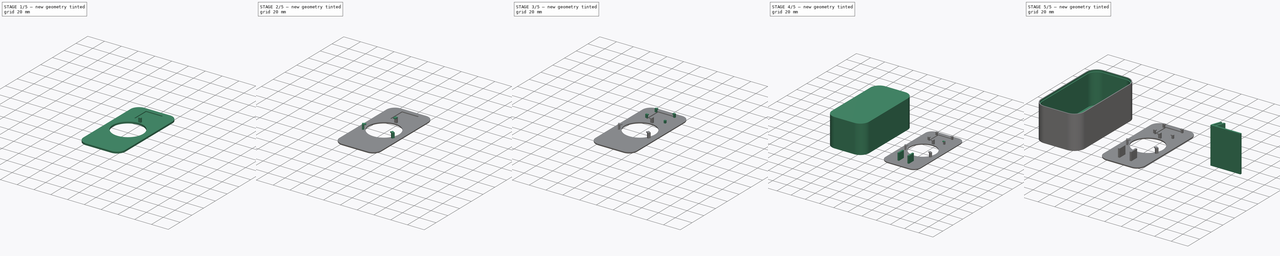
[diagram: build sequence overview — one tinted view per stage of 5, left to right]
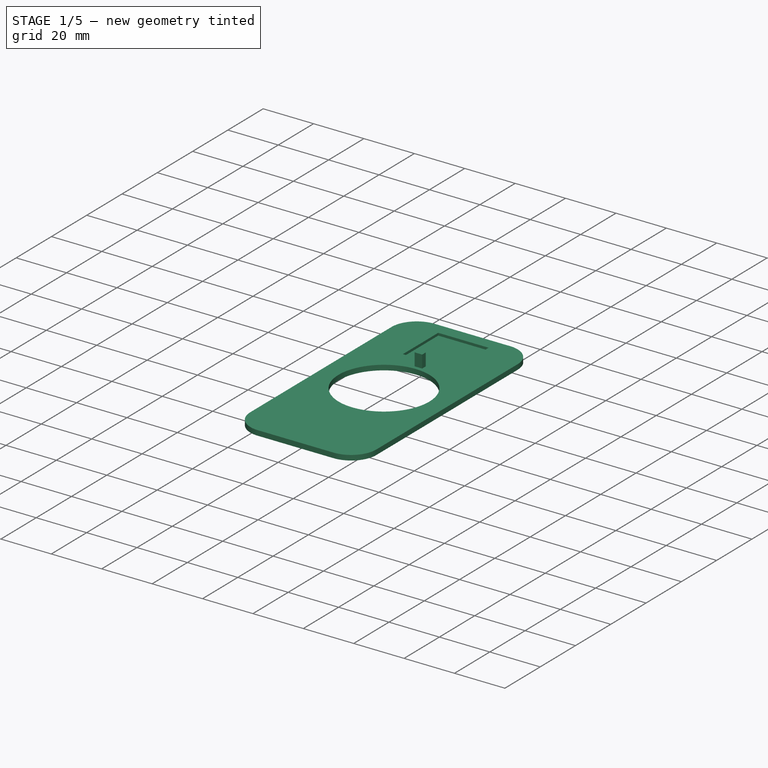
[diagram: stage 1 of 5 — iso view after this stage's code; geometry added in this stage tinted green]
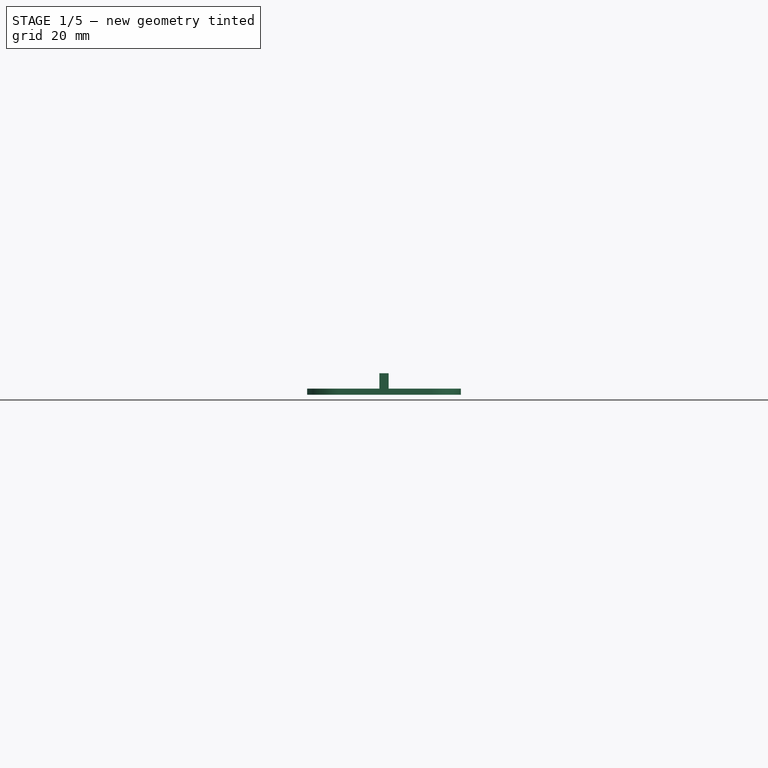
[diagram: stage 1 of 5 — front view after this stage's code; geometry added in this stage tinted green]
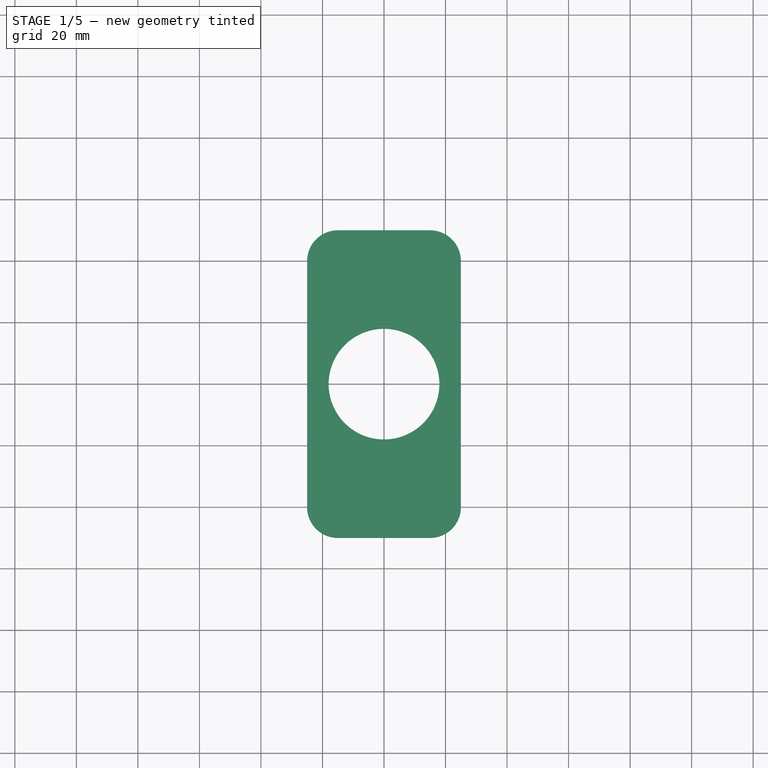
[diagram: stage 1 of 5 — top view after this stage's code; geometry added in this stage tinted green]
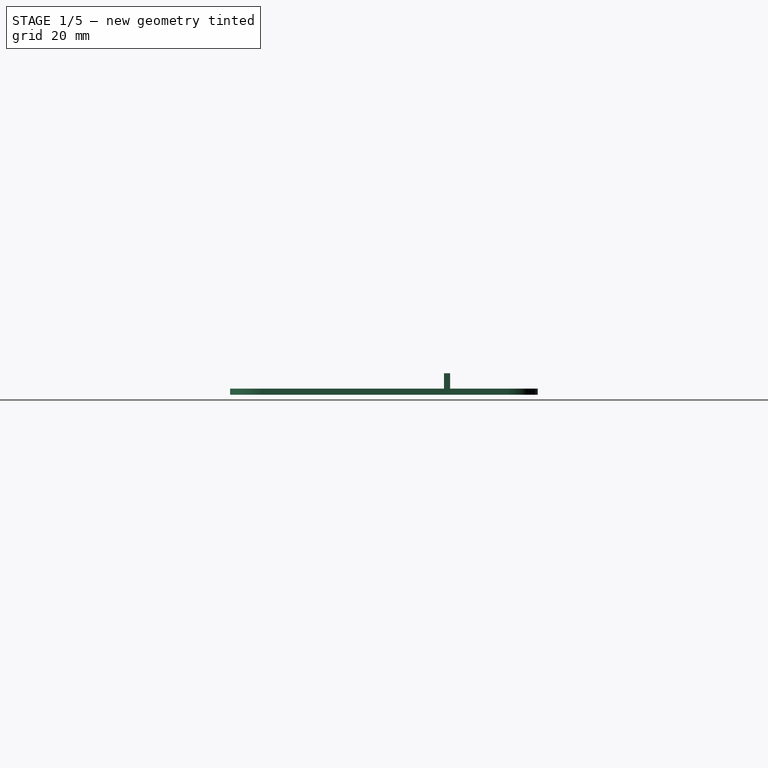
[diagram: stage 1 of 5 — right view after this stage's code; geometry added in this stage tinted green]
FCSTD DOCUMENT  (FreeCAD 1.0R38806 (Git))
Label: FrameRound
License: All rights reserved
LicenseURL: https://en.wikipedia.org/wiki/All_rights_reserved
objects: Sketcher::SketchObject×16, PartDesign::Pad×11, PartDesign::Pocket×5, PartDesign::Body×3, PartDesign::PolarPattern×1, PartDesign::Fillet×1
note: 88 computed .brp shape members not serialized (recipe doc carries the construction recipe); baked Part::Feature solids carry a one-line shape summary decoded from their .brp

FEATURE [Sketcher::SketchObject] Sketch  label="FrameS"
  ArcFitTolerance = 1e-06
  AttachmentSupport = -> [XY_Plane]
  FullyConstrained = true
  MakeInternals = false
  MapMode = 5
  sketch-geometry (12):
    g0: LineSegment StartX=-25 StartY=40 StartZ=0 EndX=-25 EndY=-40 EndZ=0
    g1: LineSegment StartX=-15 StartY=-50 StartZ=0 EndX=15 EndY=-50 EndZ=0
    g2: LineSegment StartX=25 StartY=-40 StartZ=0 EndX=25 EndY=40 EndZ=0
    g3: LineSegment StartX=15 StartY=50 StartZ=0 EndX=-15 EndY=50 EndZ=0
    g4: ArcOfCircle CenterX=-15 CenterY=40 CenterZ=0 NormalX=0 NormalY=0 NormalZ=1 AngleXU=0 Radius=10 StartAngle=1.5708 EndAngle=3.14159
    g5: GeomPoint [constr] X=-25 Y=50 Z=0
    g6: ArcOfCircle CenterX=15 CenterY=40 CenterZ=0 NormalX=0 NormalY=0 NormalZ=1 AngleXU=0 Radius=10 StartAngle=0 EndAngle=1.5708
    g7: GeomPoint [constr] X=25 Y=50 Z=0
    g8: ArcOfCircle CenterX=-15 CenterY=-40 CenterZ=0 NormalX=0 NormalY=0 NormalZ=1 AngleXU=0 Radius=10 StartAngle=3.14159 EndAngle=4.71239
    g9: GeomPoint [constr] X=-25 Y=-50 Z=0
    g10: ArcOfCircle CenterX=15 CenterY=-40 CenterZ=0 NormalX=0 NormalY=0 NormalZ=1 AngleXU=0 Radius=10 StartAngle=4.71239 EndAngle=6.28319
    g11: GeomPoint [constr] X=25 Y=-50 Z=0
  constraints (28):
    c: Vertical(g0)
    c: Vertical(g2)
    c: Horizontal(g1)
    c: Horizontal(g3)
    c: Distance(g7,g5) = 50
    c: DistanceY(g-1,g5) = 50
    c: DistanceX(g5,g-1) = 25
    c: PointOnObject(g5,g0)
    c: PointOnObject(g5,g3)
    c: Tangent(g0,g4) = -1.5708
    c: Tangent(g3,g4) = -1.5708
    c: PointOnObject(g7,g3)
    c: PointOnObject(g7,g2)
    c: Tangent(g3,g6) = -1.5708
    c: Tangent(g2,g6) = -1.5708
    c: Radius(g4) = 10
    c: Radius(g6) = 10
    c: Distance(g9,g-1) = 50
    c: PointOnObject(g9,g0)
    c: PointOnObject(g9,g1)
    c: Tangent(g0,g8) = -1.5708
    c: Tangent(g1,g8) = -1.5708
    c: PointOnObject(g11,g1)
    c: PointOnObject(g11,g2)
    c: Tangent(g1,g10) = -1.5708
    c: Tangent(g2,g10) = -1.5708
    c: Radius(g8) = 10
    c: Radius(g10) = 10
FEATURE [PartDesign::Pad] Pad  label="FrameSP"
  Direction = (0,0,1)
  Length = 2
  Length2 = 10
  Profile = -> Sketch
  ReferenceAxis = -> Sketch [N_Axis]
  Refine = true
  Suppressed = false
  Type = 0
FEATURE [PartDesign::Body] Body001  label="Stand"
  AllowCompound = false
  Group = -> [Sketch003,Pad002]
  Origin = -> Origin001
  Tip = -> Pad002
FEATURE [Sketcher::SketchObject] Sketch004  label="HookPostS"
  ArcFitTolerance = 1e-06
  AttachmentSupport = -> [Pad]
  FullyConstrained = true
  MakeInternals = false
  MapMode = 5
  Placement = pos=(0,0,2) rot=(0,0,1;0rad)
  sketch-geometry (5):
    g0: LineSegment StartX=-1.5 StartY=21.5 StartZ=0 EndX=-1.5 EndY=19.5 EndZ=0
    g1: LineSegment StartX=-1.5 StartY=19.5 StartZ=0 EndX=1.5 EndY=19.5 EndZ=0
    g2: LineSegment StartX=1.5 StartY=19.5 StartZ=0 EndX=1.5 EndY=21.5 EndZ=0
    g3: LineSegment StartX=1.5 StartY=21.5 StartZ=0 EndX=-1.5 EndY=21.5 EndZ=0
    g4: GeomPoint [constr] X=0 Y=20.5 Z=0
  constraints (13):
    c: Coincident(g0,g1)
    c: Coincident(g1,g2)
    c: Coincident(g2,g3)
    c: Coincident(g3,g0)
    c: Vertical(g0)
    c: Vertical(g2)
    c: Horizontal(g1)
    c: Horizontal(g3)
    c: Symmetric(g2,g0,g4)
    c: PointOnObject(g4,g-2)
    c: Distance(g3,g3) = 3
    c: DistanceY(g2,g2) = 2
    c: DistanceY(g-1,g4) = 20.5
FEATURE [Sketcher::SketchObject] Sketch007  label="SensorS"
  ArcFitTolerance = 1e-06
  AttachmentSupport = -> [Pad]
  ExternalGeometry = -> [Pad]
  FullyConstrained = true
  MakeInternals = false
  MapMode = 5
  Placement = pos=(0,0,2) rot=(0,0,1;0rad)
  sketch-geometry (5):
    g0: LineSegment StartX=-10 StartY=45 StartZ=0 EndX=-10 EndY=25 EndZ=0
    g1: LineSegment StartX=-10 StartY=25 StartZ=0 EndX=10 EndY=25 EndZ=0
    g2: LineSegment StartX=10 StartY=25 StartZ=0 EndX=10 EndY=45 EndZ=0
    g3: LineSegment StartX=10 StartY=45 StartZ=0 EndX=-10 EndY=45 EndZ=0
    g4: GeomPoint [constr] X=0 Y=35 Z=0
  constraints (13):
    c: Coincident(g0,g1)
    c: Coincident(g1,g2)
    c: Coincident(g2,g3)
    c: Coincident(g3,g0)
    c: Vertical(g0)
    c: Vertical(g2)
    c: Horizontal(g1)
    c: Horizontal(g3)
    c: Symmetric(g2,g0,g4)
    c: PointOnObject(g4,g-2)
    c: DistanceX(g3,g3) = 20
    c: DistanceY(g2,g2) = 20
    c: Distance(g3,g-3) = 5
FEATURE [PartDesign::Pocket] Pocket001  label="SensorSP"
  BaseFeature = -> Pad
  Direction = (0,0,-1)
  Length = 1
  Length2 = 5
  Profile = -> Sketch007
  ReferenceAxis = -> Sketch007 [N_Axis]
  Refine = true
  Suppressed = false
  Type = 0
FEATURE [PartDesign::Pocket] Pocket  label="HoleSP"
  BaseFeature = -> Pocket001
  Direction = (0,0,-1)
  Length = 5
  Length2 = 5
  Profile = -> Sketch002
  ReferenceAxis = -> Sketch002 [N_Axis]
  Refine = true
  Suppressed = false
  Type = 1
FEATURE [PartDesign::Pad] Pad003  label="HookPostSP"
  BaseFeature = -> Pocket
  Direction = (0,0,1)
  Length = 5
  Length2 = 10
  Profile = -> Sketch004
  ReferenceAxis = -> Sketch004 [N_Axis]
  Refine = true
  Suppressed = false
  Type = 0
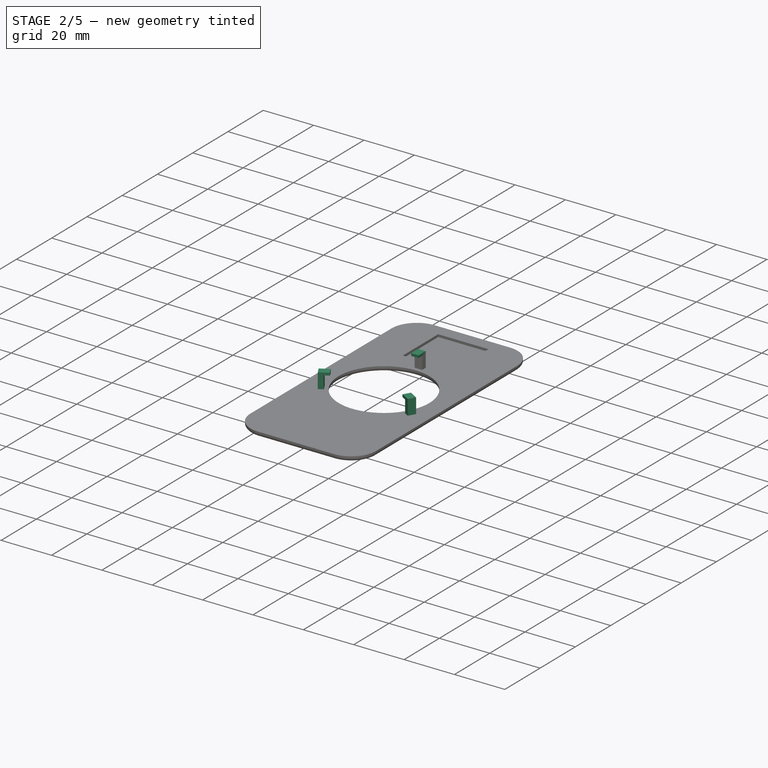
[diagram: stage 2 of 5 — iso view after this stage's code; geometry added in this stage tinted green]
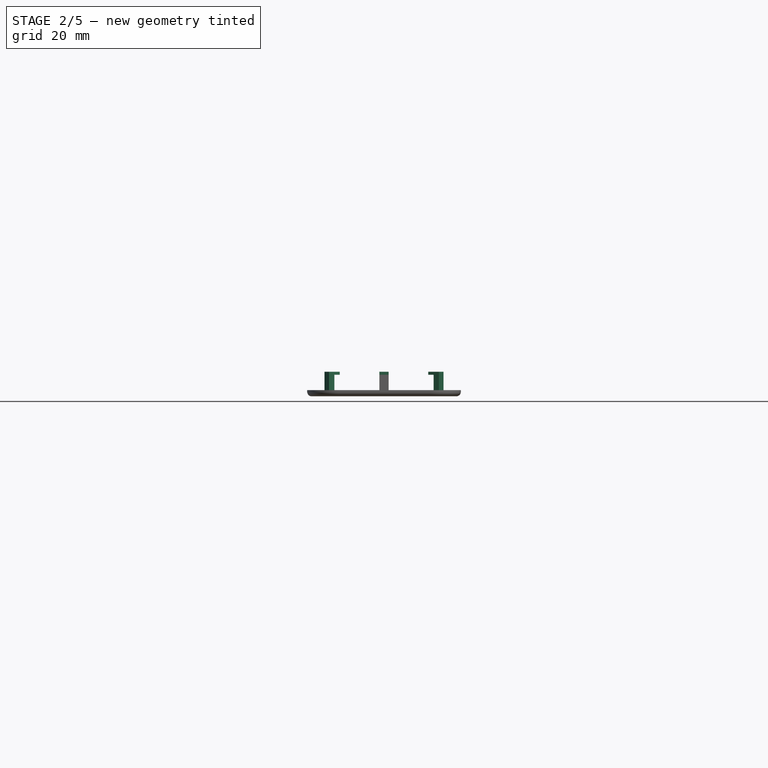
[diagram: stage 2 of 5 — front view after this stage's code; geometry added in this stage tinted green]
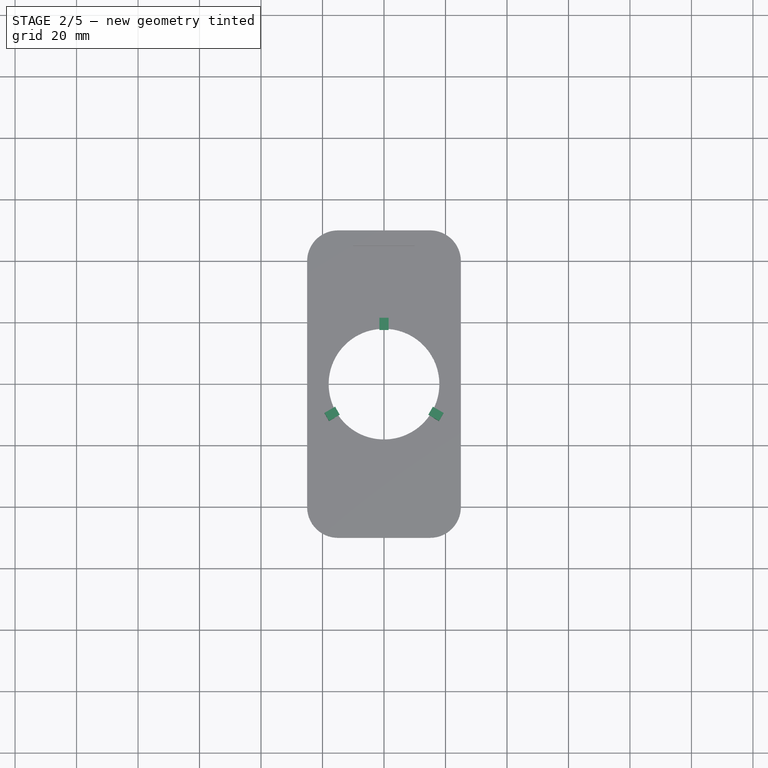
[diagram: stage 2 of 5 — top view after this stage's code; geometry added in this stage tinted green]
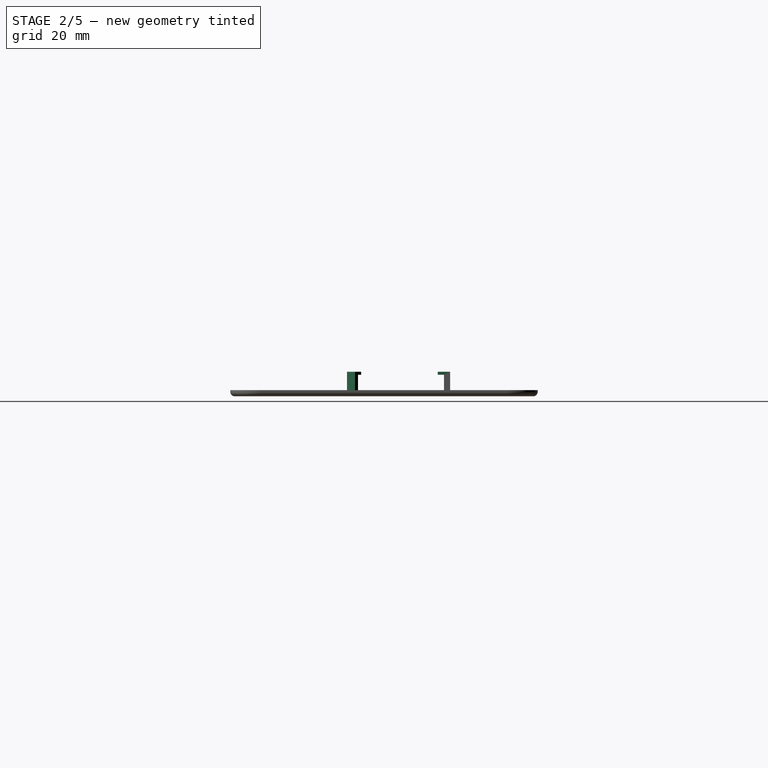
[diagram: stage 2 of 5 — right view after this stage's code; geometry added in this stage tinted green]
FEATURE [Sketcher::SketchObject] Sketch005  label="HookPostHookS"
  ArcFitTolerance = 1e-06
  AttachmentSupport = -> [Pad003]
  ExternalGeometry = -> [Pad003]
  FullyConstrained = true
  MakeInternals = false
  MapMode = 5
  Placement = pos=(0,0,7) rot=(0,0,1;0rad)
  sketch-geometry (5):
    g0: LineSegment StartX=-1.5 StartY=21.5 StartZ=0 EndX=-1.5 EndY=17.5 EndZ=0
    g1: LineSegment StartX=-1.5 StartY=17.5 StartZ=0 EndX=1.5 EndY=17.5 EndZ=0
    g2: LineSegment StartX=1.5 StartY=17.5 StartZ=0 EndX=1.5 EndY=21.5 EndZ=0
    g3: LineSegment StartX=1.5 StartY=21.5 StartZ=0 EndX=-1.5 EndY=21.5 EndZ=0
    g4: GeomPoint [constr] X=0 Y=19.5 Z=0
  constraints (12):
    c: Coincident(g0,g1)
    c: Coincident(g1,g2)
    c: Coincident(g2,g3)
    c: Coincident(g3,g0)
    c: Vertical(g0)
    c: Vertical(g2)
    c: Horizontal(g1)
    c: Horizontal(g3)
    c: Symmetric(g2,g0,g4)
    c: PointOnObject(g4,g-2)
    c: Coincident(g2,g-6)
    c: DistanceY(g2,g2) = 4
FEATURE [PartDesign::Pad] Pad004  label="HookPostHookSP"
  BaseFeature = -> Pad003
  Direction = (0,0,1)
  Length = 1
  Length2 = 10
  Profile = -> Sketch005
  ReferenceAxis = -> Sketch005 [N_Axis]
  Refine = true
  Suppressed = false
  Type = 0
FEATURE [PartDesign::PolarPattern] PolarPattern
  Angle = 360
  Axis = -> Sketch004 [N_Axis]
  BaseFeature = -> Pad004
  Mode = 0
  Occurrences = 3
  Offset = 120
  Originals = -> [Pad003,Pad004]
  Refine = true
  Suppressed = false
  TransformMode = 0
FEATURE [PartDesign::Fillet] Fillet
  Base = -> PolarPattern [Edge16,Edge15,Edge13,Edge11,Edge6,Edge3]
  BaseFeature = -> PolarPattern
  Radius = 1.5
  Refine = true
  SupportTransform = false
  Suppressed = false
  UseAllEdges = false
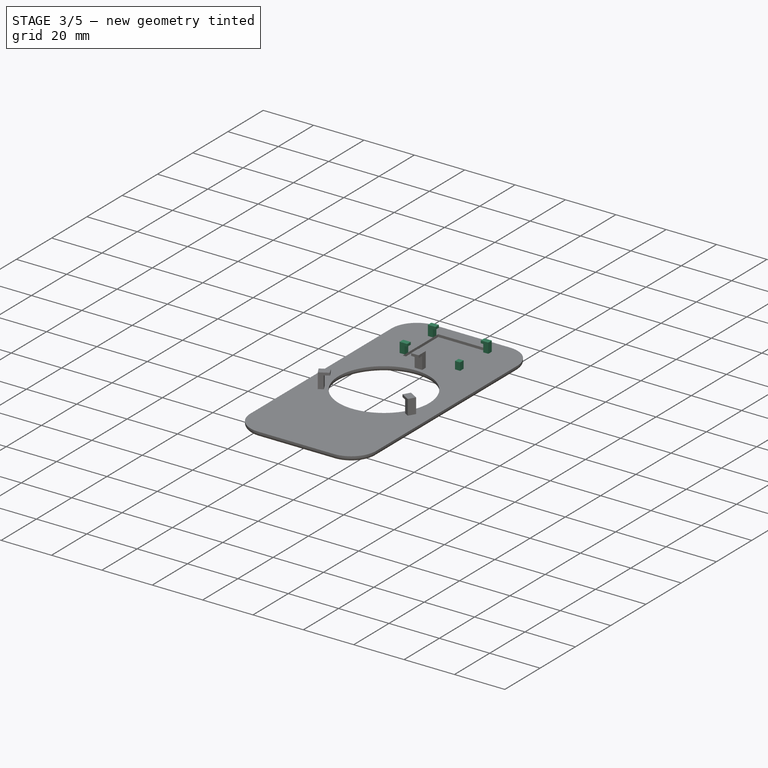
[diagram: stage 3 of 5 — iso view after this stage's code; geometry added in this stage tinted green]
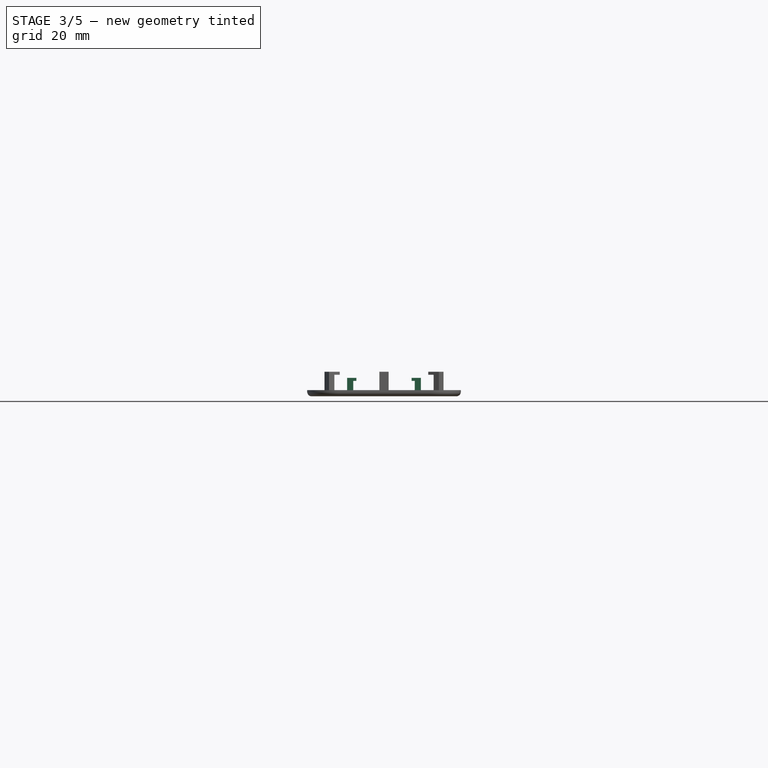
[diagram: stage 3 of 5 — front view after this stage's code; geometry added in this stage tinted green]
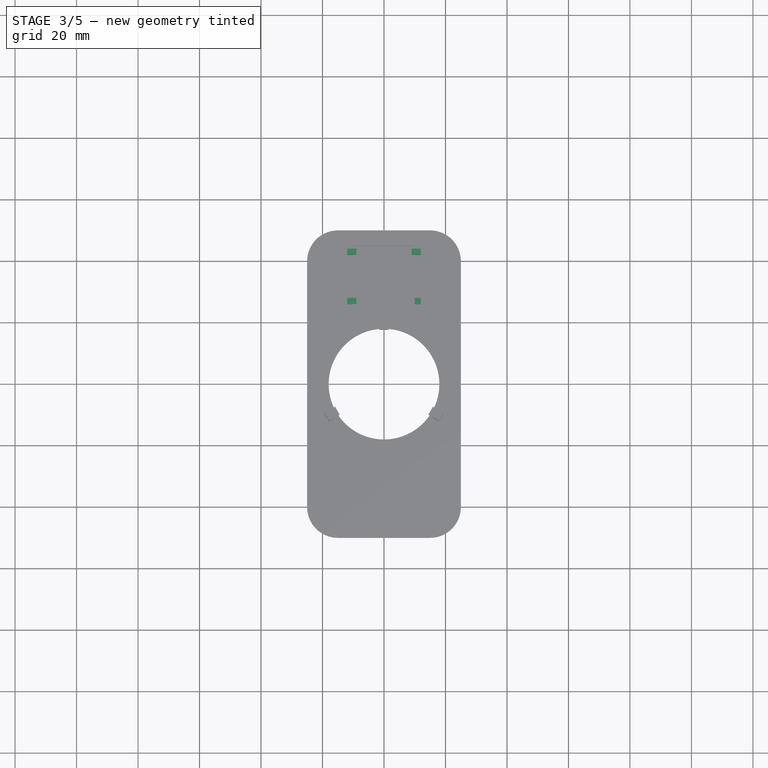
[diagram: stage 3 of 5 — top view after this stage's code; geometry added in this stage tinted green]
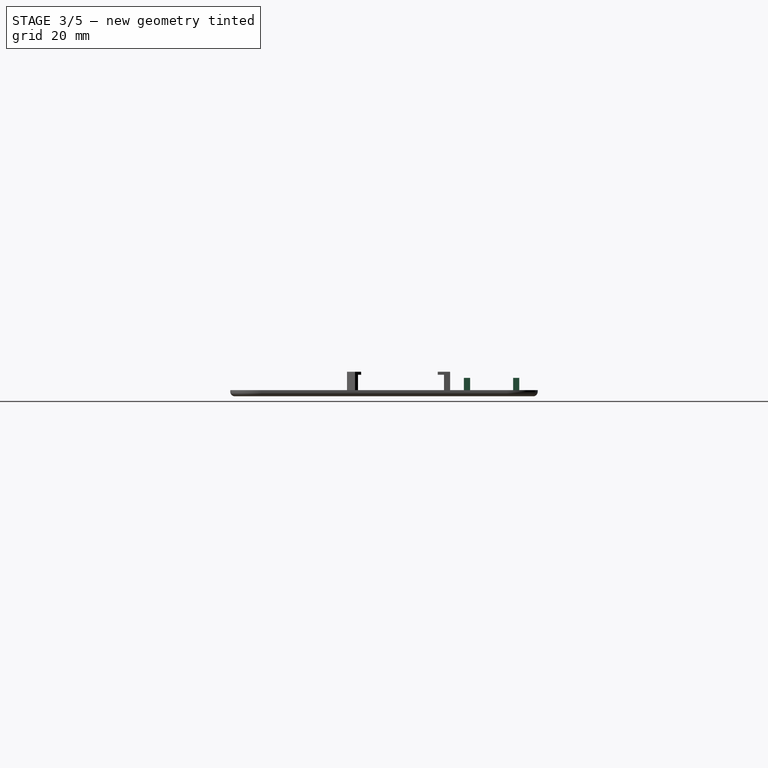
[diagram: stage 3 of 5 — right view after this stage's code; geometry added in this stage tinted green]
FEATURE [Sketcher::SketchObject] Sketch008  label="SensorHooksS"
  ArcFitTolerance = 1e-06
  AttachmentSupport = -> [Pad]
  ExternalGeometry = -> [Pad]
  FullyConstrained = true
  MakeInternals = false
  MapMode = 5
  Placement = pos=(0,0,2) rot=(0,0,1;0rad)
  sketch-geometry (16):
    g0: LineSegment StartX=-12 StartY=44 StartZ=0 EndX=-12 EndY=42 EndZ=0
    g1: LineSegment StartX=-12 StartY=42 StartZ=0 EndX=-10 EndY=42 EndZ=0
    g2: LineSegment StartX=-10 StartY=42 StartZ=0 EndX=-10 EndY=44 EndZ=0
    g3: LineSegment StartX=-10 StartY=44 StartZ=0 EndX=-12 EndY=44 EndZ=0
    g4: LineSegment StartX=10 StartY=44 StartZ=0 EndX=10 EndY=42 EndZ=0
    g5: LineSegment StartX=10 StartY=42 StartZ=0 EndX=12 EndY=42 EndZ=0
    g6: LineSegment StartX=12 StartY=42 StartZ=0 EndX=12 EndY=44 EndZ=0
    g7: LineSegment StartX=12 StartY=44 StartZ=0 EndX=10 EndY=44 EndZ=0
    g8: LineSegment StartX=10 StartY=28 StartZ=0 EndX=10 EndY=26 EndZ=0
    g9: LineSegment StartX=10 StartY=26 StartZ=0 EndX=12 EndY=26 EndZ=0
    g10: LineSegment StartX=12 StartY=26 StartZ=0 EndX=12 EndY=28 EndZ=0
    g11: LineSegment StartX=12 StartY=28 StartZ=0 EndX=10 EndY=28 EndZ=0
    g12: LineSegment StartX=-12 StartY=28 StartZ=0 EndX=-12 EndY=26 EndZ=0
    g13: LineSegment StartX=-12 StartY=26 StartZ=0 EndX=-10 EndY=26 EndZ=0
    g14: LineSegment StartX=-10 StartY=26 StartZ=0 EndX=-10 EndY=28 EndZ=0
    g15: LineSegment StartX=-10 StartY=28 StartZ=0 EndX=-12 EndY=28 EndZ=0
  constraints (48):
    c: Coincident(g0,g1)
    c: Coincident(g1,g2)
    c: Coincident(g2,g3)
    c: Coincident(g3,g0)
    c: Vertical(g0)
    c: Vertical(g2)
    c: Horizontal(g1)
    c: Horizontal(g3)
    c: Coincident(g4,g5)
    c: Coincident(g5,g6)
    c: Coincident(g6,g7)
    c: Coincident(g7,g4)
    c: Vertical(g4)
    c: Vertical(g6)
    c: Horizontal(g5)
    c: Horizontal(g7)
    c: Coincident(g8,g9)
    c: Coincident(g9,g10)
    c: Coincident(g10,g11)
    c: Coincident(g11,g8)
    c: Vertical(g8)
    c: Vertical(g10)
    c: Horizontal(g9)
    c: Horizontal(g11)
    c: Coincident(g12,g13)
    c: Coincident(g13,g14)
    c: Coincident(g14,g15)
    c: Coincident(g15,g12)
    c: Vertical(g12)
    c: Vertical(g14)
    c: Horizontal(g13)
    c: Horizontal(g15)
    c: DistanceX(g3,g3) = 2
    c: DistanceY(g0,g0) = 2
    c: DistanceX(g13,g13) = 2
    c: DistanceY(g12,g12) = 2
    c: DistanceX(g9,g9) = 2
    c: DistanceY(g10,g10) = 2
    c: DistanceY(g6,g6) = 2
    c: DistanceX(g7,g7) = 2
    c: DistanceX(g2,g4) = 20
    c: DistanceX(g13,g8) = 20
    c: Distance(g13,g-2) = 10
    c: Distance(g2,g-2) = 10
    c: Distance(g2,g-3) = 6
    c: DistanceY(g4,g1) = 0
    c: DistanceY(g8,g14) = 0
    c: DistanceY(g14,g1) = 14
FEATURE [PartDesign::Pad] Pad006  label="SensorHooksSP"
  BaseFeature = -> Fillet
  Direction = (0,0,1)
  Length = 3
  Length2 = 10
  Profile = -> Sketch008
  ReferenceAxis = -> Sketch008 [N_Axis]
  Refine = true
  Suppressed = false
  Type = 0
FEATURE [Sketcher::SketchObject] Sketch009
  ArcFitTolerance = 1e-06
  AttachmentSupport = -> [Pad006]
  ExternalGeometry = -> [Pad006]
  FullyConstrained = true
  MakeInternals = false
  MapMode = 5
  Placement = pos=(0,0,5) rot=(0,0,1;0rad)
  sketch-geometry (4):
    g0: LineSegment StartX=-12 StartY=44 StartZ=0 EndX=-12 EndY=42 EndZ=0
    g1: LineSegment StartX=-12 StartY=42 StartZ=0 EndX=-9 EndY=42 EndZ=0
    g2: LineSegment StartX=-9 StartY=42 StartZ=0 EndX=-9 EndY=44 EndZ=0
    g3: LineSegment StartX=-9 StartY=44 StartZ=0 EndX=-12 EndY=44 EndZ=0
  constraints (10):
    c: Coincident(g0,g1)
    c: Coincident(g1,g2)
    c: Coincident(g2,g3)
    c: Coincident(g3,g0)
    c: Vertical(g2)
    c: Horizontal(g1)
    c: Horizontal(g3)
    c: Coincident(g0,g-4)
    c: Coincident(g0,g-5)
    c: DistanceX(g3,g3) = 3
FEATURE [PartDesign::Pad] Pad007
  BaseFeature = -> Pad006
  Direction = (0,0,1)
  Length = 1
  Length2 = 10
  Profile = -> Sketch009
  ReferenceAxis = -> Sketch009 [N_Axis]
  Refine = true
  Suppressed = false
  Type = 0
FEATURE [Sketcher::SketchObject] Sketch010
  ArcFitTolerance = 1e-06
  AttachmentSupport = -> [Pad007]
  ExternalGeometry = -> [Pad007]
  FullyConstrained = true
  MakeInternals = false
  MapMode = 5
  Placement = pos=(0,0,5) rot=(0,0,1;0rad)
  sketch-geometry (4):
    g0: LineSegment StartX=-12 StartY=28 StartZ=0 EndX=-12 EndY=26 EndZ=0
    g1: LineSegment StartX=-12 StartY=26 StartZ=0 EndX=-9 EndY=26 EndZ=0
    g2: LineSegment StartX=-9 StartY=26 StartZ=0 EndX=-9 EndY=28 EndZ=0
    g3: LineSegment StartX=-9 StartY=28 StartZ=0 EndX=-12 EndY=28 EndZ=0
  constraints (10):
    c: Coincident(g0,g1)
    c: Coincident(g1,g2)
    c: Coincident(g2,g3)
    c: Coincident(g3,g0)
    c: Vertical(g2)
    c: Horizontal(g1)
    c: Horizontal(g3)
    c: Coincident(g0,g-4)
    c: Coincident(g0,g-5)
    c: DistanceX(g3,g3) = 3
FEATURE [PartDesign::Pad] Pad008
  BaseFeature = -> Pad007
  Direction = (0,0,1)
  Length = 1
  Length2 = 10
  Profile = -> Sketch010
  ReferenceAxis = -> Sketch010 [N_Axis]
  Refine = true
  Suppressed = false
  Type = 0
FEATURE [Sketcher::SketchObject] Sketch011
  ArcFitTolerance = 1e-06
  AttachmentSupport = -> [Pad008]
  ExternalGeometry = -> [Pad008]
  FullyConstrained = true
  MakeInternals = false
  MapMode = 5
  Placement = pos=(0,0,5) rot=(0,0,1;0rad)
  sketch-geometry (4):
    g0: LineSegment StartX=12 StartY=44 StartZ=0 EndX=9 EndY=44 EndZ=0
    g1: LineSegment StartX=9 StartY=44 StartZ=0 EndX=9 EndY=42 EndZ=0
    g2: LineSegment StartX=9 StartY=42 StartZ=0 EndX=12 EndY=42 EndZ=0
    g3: LineSegment StartX=12 StartY=42 StartZ=0 EndX=12 EndY=44 EndZ=0
  constraints (10):
    c: Coincident(g0,g1)
    c: Coincident(g1,g2)
    c: Coincident(g2,g3)
    c: Coincident(g3,g0)
    c: Horizontal(g0)
    c: Horizontal(g2)
    c: Vertical(g1)
    c: Coincident(g0,g-4)
    c: Coincident(g2,g-5)
    c: DistanceX(g0,g0) = 3
FEATURE [PartDesign::Pad] Pad009
  BaseFeature = -> Pad008
  Direction = (0,0,1)
  Length = 1
  Length2 = 10
  Profile = -> Sketch011
  ReferenceAxis = -> Sketch011 [N_Axis]
  Refine = true
  Suppressed = false
  Type = 0
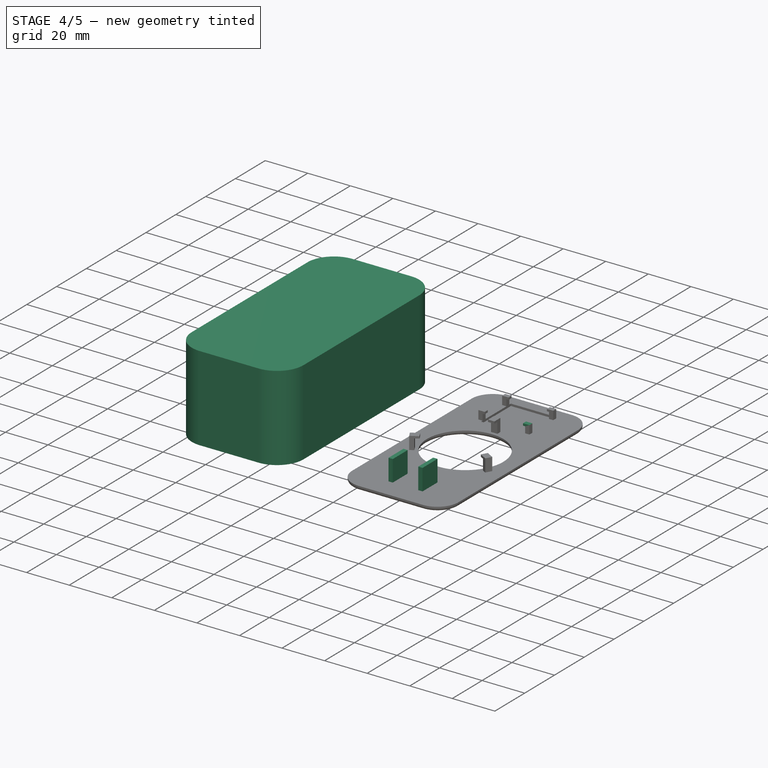
[diagram: stage 4 of 5 — iso view after this stage's code; geometry added in this stage tinted green]
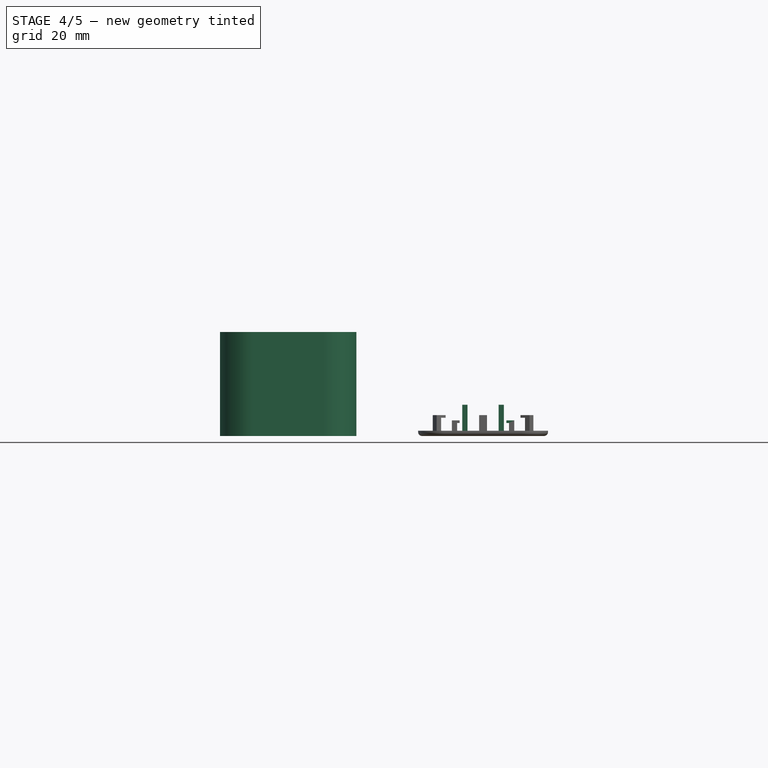
[diagram: stage 4 of 5 — front view after this stage's code; geometry added in this stage tinted green]
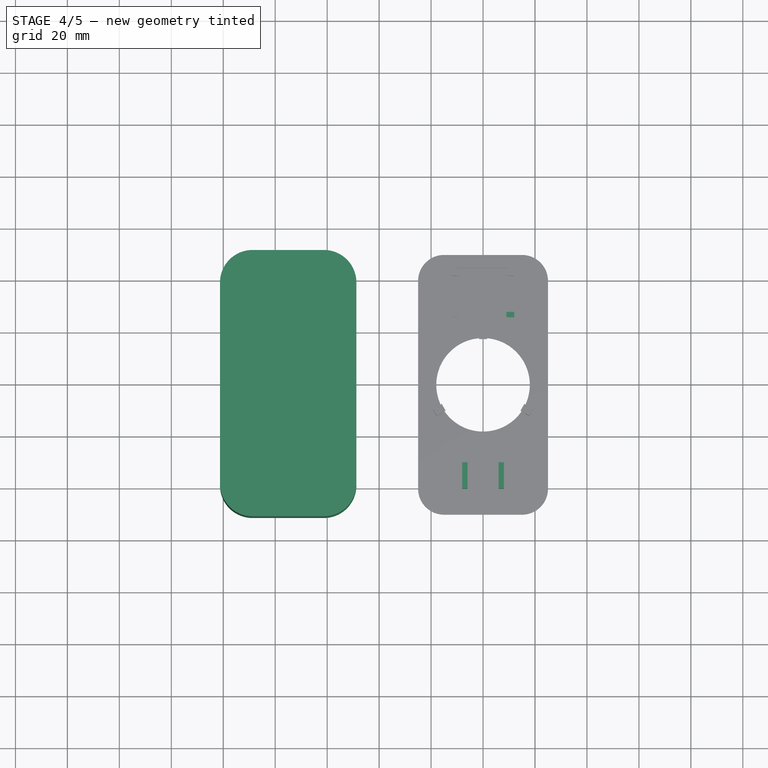
[diagram: stage 4 of 5 — top view after this stage's code; geometry added in this stage tinted green]
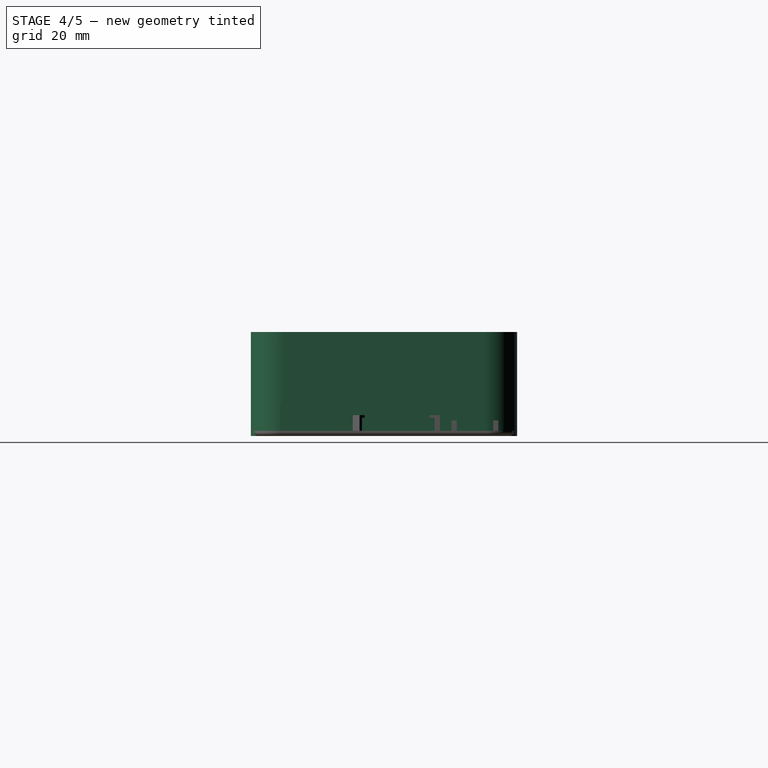
[diagram: stage 4 of 5 — right view after this stage's code; geometry added in this stage tinted green]
FEATURE [Sketcher::SketchObject] Sketch012
  ArcFitTolerance = 1e-06
  AttachmentSupport = -> [Pad009]
  ExternalGeometry = -> [Pad009]
  FullyConstrained = true
  MakeInternals = false
  MapMode = 5
  Placement = pos=(0,0,5) rot=(0,0,1;0rad)
  sketch-geometry (4):
    g0: LineSegment StartX=12 StartY=28 StartZ=0 EndX=9 EndY=28 EndZ=0
    g1: LineSegment StartX=9 StartY=28 StartZ=0 EndX=9 EndY=26 EndZ=0
    g2: LineSegment StartX=9 StartY=26 StartZ=0 EndX=12 EndY=26 EndZ=0
    g3: LineSegment StartX=12 StartY=26 StartZ=0 EndX=12 EndY=28 EndZ=0
  constraints (10):
    c: Coincident(g0,g1)
    c: Coincident(g1,g2)
    c: Coincident(g2,g3)
    c: Coincident(g3,g0)
    c: Horizontal(g0)
    c: Horizontal(g2)
    c: Vertical(g1)
    c: Coincident(g0,g-4)
    c: Coincident(g2,g-5)
    c: DistanceX(g0,g0) = 3
FEATURE [PartDesign::Pad] Pad010
  BaseFeature = -> Pad009
  Direction = (0,0,1)
  Length = 1
  Length2 = 10
  Profile = -> Sketch012
  ReferenceAxis = -> Sketch012 [N_Axis]
  Refine = true
  Suppressed = false
  Type = 0
FEATURE [Sketcher::SketchObject] Sketch013  label="FrameS001"
  ArcFitTolerance = 1e-06
  AttachmentSupport = -> [XY_Plane002]
  FullyConstrained = true
  MakeInternals = false
  MapMode = 5
  sketch-geometry (13):
    g0: LineSegment StartX=-101.25 StartY=38.75 StartZ=0 EndX=-101.25 EndY=-38.75 EndZ=0
    g1: LineSegment StartX=-88.75 StartY=-51.25 StartZ=0 EndX=-61.25 EndY=-51.25 EndZ=0
    g2: LineSegment StartX=-48.75 StartY=-38.75 StartZ=0 EndX=-48.75 EndY=38.75 EndZ=0
    g3: LineSegment StartX=-61.25 StartY=51.25 StartZ=0 EndX=-88.75 EndY=51.25 EndZ=0
    g4: GeomPoint [constr] X=-75 Y=0 Z=0
    g5: ArcOfCircle CenterX=-88.75 CenterY=38.75 CenterZ=0 NormalX=0 NormalY=0 NormalZ=1 AngleXU=0 Radius=12.5 StartAngle=1.5708 EndAngle=3.14159
    g6: GeomPoint [constr] X=-101.25 Y=51.25 Z=0
    g7: ArcOfCircle CenterX=-61.25 CenterY=38.75 CenterZ=0 NormalX=0 NormalY=0 NormalZ=1 AngleXU=0 Radius=12.5 StartAngle=0 EndAngle=1.5708
    g8: GeomPoint [constr] X=-48.75 Y=51.25 Z=0
    g9: ArcOfCircle CenterX=-88.75 CenterY=-38.75 CenterZ=0 NormalX=0 NormalY=0 NormalZ=1 AngleXU=0 Radius=12.5 StartAngle=3.14159 EndAngle=4.71239
    g10: GeomPoint [constr] X=-101.25 Y=-51.25 Z=0
    g11: ArcOfCircle CenterX=-61.25 CenterY=-38.75 CenterZ=0 NormalX=0 NormalY=0 NormalZ=1 AngleXU=0 Radius=12.5 StartAngle=4.71239 EndAngle=6.28319
    g12: GeomPoint [constr] X=-48.75 Y=-51.25 Z=0
  constraints (29):
    c: Vertical(g0)
    c: Vertical(g2)
    c: Horizontal(g1)
    c: Horizontal(g3)
    c: Symmetric(g12,g6,g4)
    c: PointOnObject(g4,g-1)
    c: Distance(g-1,g4) = 75
    c: DistanceY(g10,g6) = 102.5
    c: DistanceX(g6,g8) = 52.5
    c: PointOnObject(g6,g0)
    c: PointOnObject(g6,g3)
    c: Tangent(g0,g5) = -1.5708
    c: Tangent(g3,g5) = -1.5708
    c: PointOnObject(g8,g3)
    c: PointOnObject(g8,g2)
    c: Tangent(g3,g7) = -1.5708
    c: Tangent(g2,g7) = -1.5708
    c: PointOnObject(g10,g0)
    c: PointOnObject(g10,g1)
    c: Tangent(g0,g9) = -1.5708
    c: Tangent(g1,g9) = -1.5708
    c: PointOnObject(g12,g1)
    c: PointOnObject(g12,g2)
    c: Tangent(g1,g11) = -1.5708
    c: Tangent(g2,g11) = -1.5708
    c: Radius(g5) = 12.5
    c: Radius(g7) = 12.5
    c: Radius(g9) = 12.5
    c: Radius(g11) = 12.5
FEATURE [PartDesign::Pad] Pad011
  Direction = (0,0,1)
  Length = 40
  Length2 = 10
  Profile = -> Sketch013
  ReferenceAxis = -> Sketch013 [N_Axis]
  Refine = true
  Suppressed = false
  Type = 0
FEATURE [PartDesign::Body] Body002  label="Frame"
  AllowCompound = false
  Group = -> [Sketch013,Pad011,Sketch014,Pocket002,Sketch015,Pocket003,Sketch016,Pocket004]
  Origin = -> Origin002
  Tip = -> Pocket004
FEATURE [Sketcher::SketchObject] Sketch017
  ArcFitTolerance = 1e-06
  AttachmentSupport = -> [Pad010]
  ExternalGeometry = -> [Pad010]
  FullyConstrained = true
  MakeInternals = false
  MapMode = 5
  Placement = pos=(0,0,2) rot=(0,0,1;0rad)
  sketch-geometry (8):
    g0: LineSegment StartX=6 StartY=-30 StartZ=0 EndX=6 EndY=-40 EndZ=0
    g1: LineSegment StartX=6 StartY=-40 StartZ=0 EndX=8 EndY=-40 EndZ=0
    g2: LineSegment StartX=8 StartY=-40 StartZ=0 EndX=8 EndY=-30 EndZ=0
    g3: LineSegment StartX=8 StartY=-30 StartZ=0 EndX=6 EndY=-30 EndZ=0
    g4: LineSegment StartX=-6 StartY=-30 StartZ=0 EndX=-8 EndY=-30 EndZ=0
    g5: LineSegment StartX=-8 StartY=-30 StartZ=0 EndX=-8 EndY=-40 EndZ=0
    g6: LineSegment StartX=-8 StartY=-40 StartZ=0 EndX=-6 EndY=-40 EndZ=0
    g7: LineSegment StartX=-6 StartY=-40 StartZ=0 EndX=-6 EndY=-30 EndZ=0
  constraints (24):
    c: Coincident(g0,g1)
    c: Coincident(g1,g2)
    c: Coincident(g2,g3)
    c: Coincident(g3,g0)
    c: Vertical(g0)
    c: Vertical(g2)
    c: Horizontal(g1)
    c: Horizontal(g3)
    c: Coincident(g4,g5)
    c: Coincident(g5,g6)
    c: Coincident(g6,g7)
    c: Coincident(g7,g4)
    c: Horizontal(g4)
    c: Horizontal(g6)
    c: Vertical(g5)
    c: Vertical(g7)
    c: Distance(g4,g4) = 2
    c: Distance(g3,g3) = 2
    c: DistanceY(g2,g2) = 10
    c: DistanceY(g5,g5) = 10
    c: Distance(g6,g-3) = 10
    c: Distance(g0,g-3) = 10
    c: Distance(g-2,g7) = 6
    c: Distance(g0,g-2) = 6
FEATURE [PartDesign::Pad] Pad012
  BaseFeature = -> Pad010
  Direction = (0,0,1)
  Length = 10
  Length2 = 10
  Profile = -> Sketch017
  ReferenceAxis = -> Sketch017 [N_Axis]
  Refine = true
  Suppressed = false
  Type = 0
FEATURE [PartDesign::Body] Body
  AllowCompound = false
  Group = -> [Sketch,Pad,Sketch002,Sketch004,Sketch007,Pocket001,Sketch008,Pocket,Pad003,Sketch005,Pad004,PolarPattern,Fillet,Pad006,Sketch009,Pad007,Sketch010,Pad008,Sketch011,Pad009,Sketch012,Pad010,Sketch017,Pad012]
  Origin = -> Origin
  Tip = -> Pad012
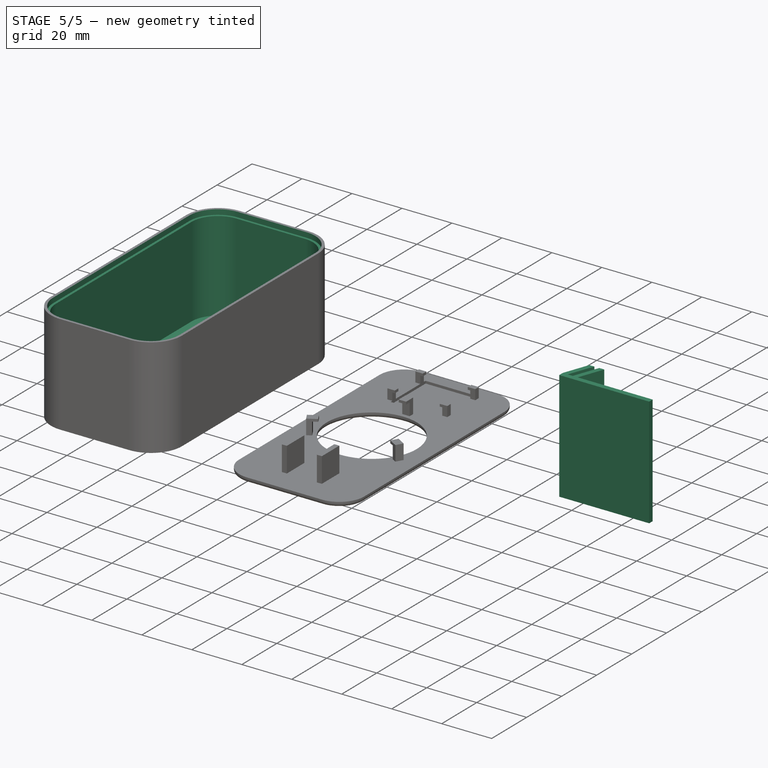
[diagram: stage 5 of 5 — iso view after this stage's code; geometry added in this stage tinted green]
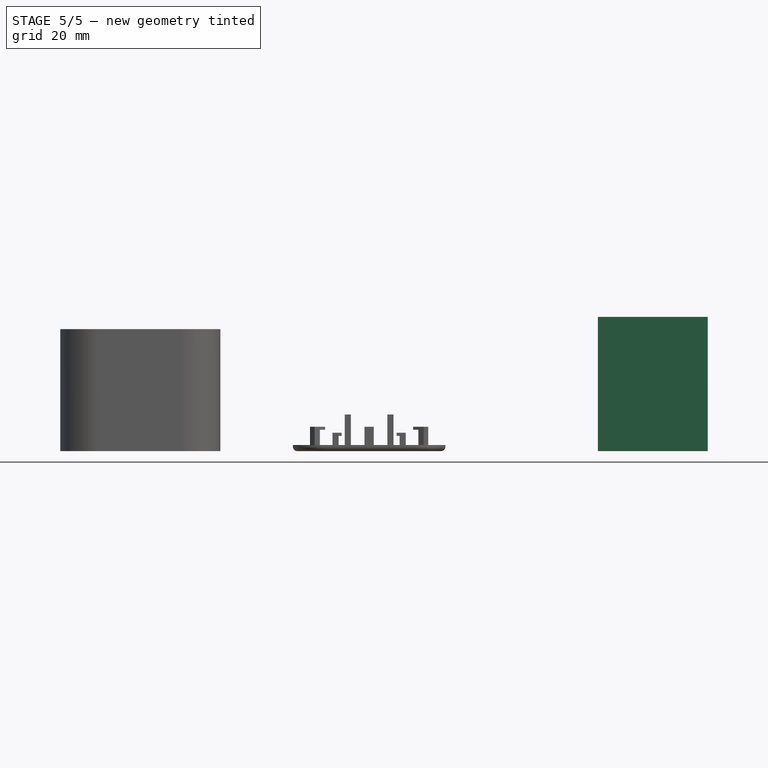
[diagram: stage 5 of 5 — front view after this stage's code; geometry added in this stage tinted green]
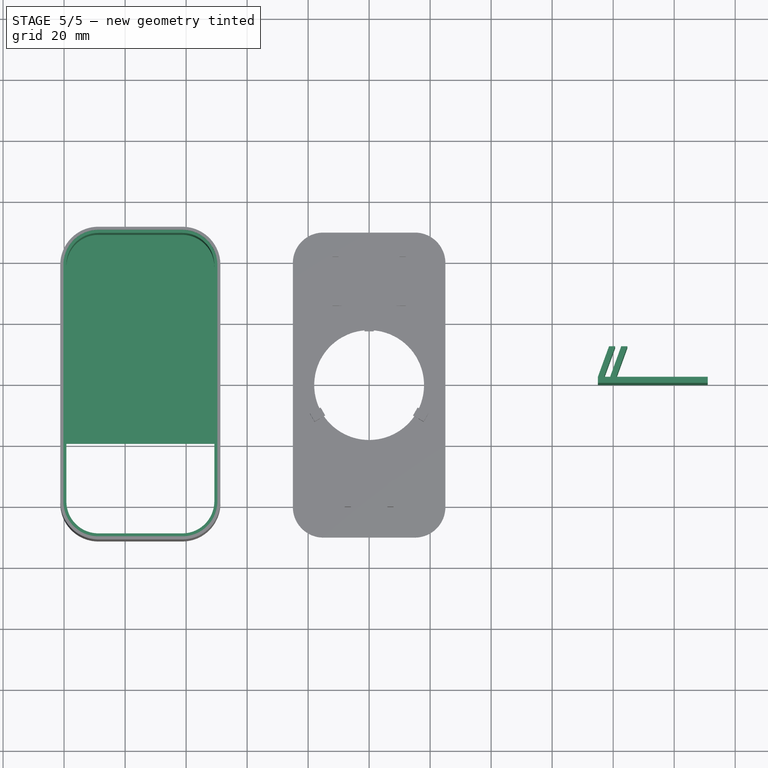
[diagram: stage 5 of 5 — top view after this stage's code; geometry added in this stage tinted green]
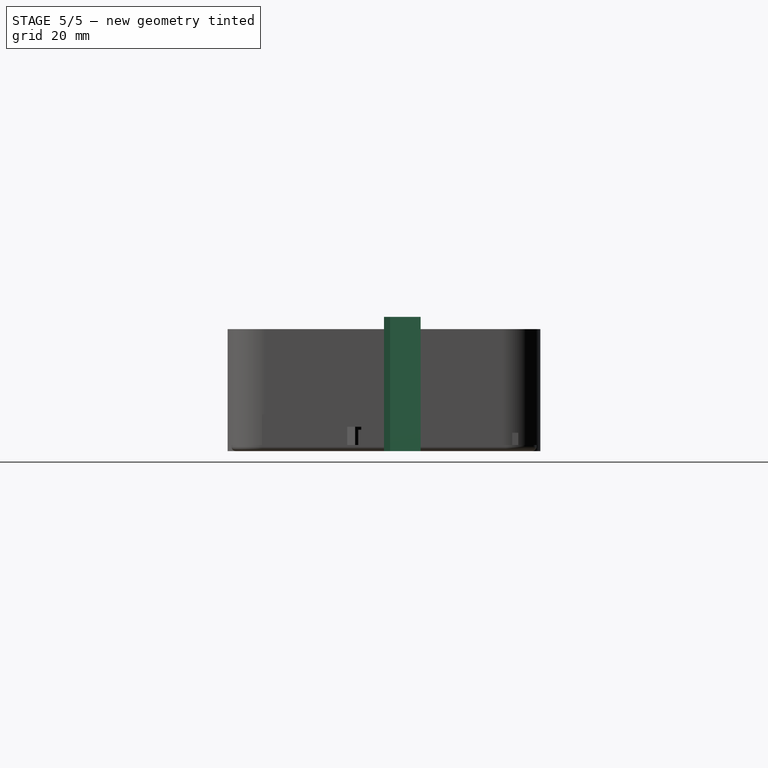
[diagram: stage 5 of 5 — right view after this stage's code; geometry added in this stage tinted green]
FEATURE [Sketcher::SketchObject] Sketch002  label="HoleS"
  ArcFitTolerance = 1e-06
  AttachmentSupport = -> [Pad]
  FullyConstrained = true
  MakeInternals = false
  MapMode = 5
  Placement = pos=(0,0,2) rot=(0,0,1;0rad)
  sketch-geometry (1):
    g0: Circle CenterX=0 CenterY=0 CenterZ=0 NormalX=0 NormalY=0 NormalZ=1 AngleXU=0 Radius=18
  constraints (2):
    c: Coincident(g0,g-1)
    c: Radius(g0) = 18
FEATURE [Sketcher::SketchObject] Sketch003
  ArcFitTolerance = 1e-06
  AttachmentSupport = -> [XY_Plane001]
  FullyConstrained = true
  MakeInternals = false
  MapMode = 5
  sketch-geometry (11):
    g0: LineSegment StartX=75 StartY=0 StartZ=0 EndX=111 EndY=0 EndZ=0
    g1: LineSegment StartX=111 StartY=0 StartZ=0 EndX=111 EndY=2 EndZ=0
    g2: LineSegment StartX=111 StartY=2 StartZ=0 EndX=81 EndY=2 EndZ=0
    g3: LineSegment StartX=81 StartY=2 StartZ=0 EndX=84.6397 EndY=12 EndZ=0
    g4: LineSegment StartX=84.6397 StartY=12 StartZ=0 EndX=82.6397 EndY=12 EndZ=0
    g5: LineSegment StartX=82.6397 StartY=12 StartZ=0 EndX=79 EndY=2 EndZ=0
    g6: LineSegment StartX=79 StartY=2 StartZ=0 EndX=77 EndY=2 EndZ=0
    g7: LineSegment StartX=77 StartY=2 StartZ=0 EndX=80.6397 EndY=12 EndZ=0
    g8: LineSegment StartX=80.6397 StartY=12 StartZ=0 EndX=78.6397 EndY=12 EndZ=0
    g9: LineSegment StartX=78.6397 StartY=12 StartZ=0 EndX=75 EndY=2 EndZ=0
    g10: LineSegment StartX=75 StartY=2 StartZ=0 EndX=75 EndY=0 EndZ=0
  constraints (33):
    c: PointOnObject(g0,g-1)
    c: PointOnObject(g0,g-1)
    c: Coincident(g0,g1)
    c: Coincident(g1,g2)
    c: Coincident(g2,g3)
    c: Coincident(g3,g4)
    c: Horizontal(g4)
    c: Coincident(g4,g5)
    c: Coincident(g5,g6)
    c: Coincident(g6,g7)
    c: Coincident(g7,g8)
    c: Horizontal(g8)
    c: Coincident(g8,g9)
    c: Coincident(g10,g0)
    c: Horizontal(g6)
    c: Horizontal(g2)
    c: Vertical(g10)
    c: Vertical(g1)
    c: DistanceY(g1,g1) = 2
    c: DistanceX(g-1,g0) = 75
    c: Parallel(g9,g7)
    c: Parallel(g5,g3)
    c: Parallel(g7,g5)
    c: DistanceX(g6,g6) = 2
    c: DistanceX(g5,g2) = 2
    c: DistanceX(g2,g2) = 30
    c: Coincident(g10,g9)
    c: DistanceY(g10,g10) = 2
    c: DistanceY(g6,g9) = 0
    c: DistanceX(g9,g6) = 2
    c: DistanceY(g7,g4) = 0
    c: DistanceY(g9,g8) = 10
    c: Angle(g2,g3) = 1.22173
FEATURE [PartDesign::Pad] Pad002
  Direction = (0,0,1)
  Length = 44
  Length2 = 10
  Profile = -> Sketch003
  ReferenceAxis = -> Sketch003 [N_Axis]
  Refine = true
  Suppressed = false
  Type = 0
FEATURE [Sketcher::SketchObject] Sketch014
  ArcFitTolerance = 1e-06
  AttachmentSupport = -> [Pad011]
  ExternalGeometry = -> [Pad011]
  FullyConstrained = true
  MakeInternals = false
  MapMode = 5
  Placement = pos=(0,0,40) rot=(0,0,1;0rad)
  sketch-geometry (17):
    g0: LineSegment StartX=-100.25 StartY=38.75 StartZ=0 EndX=-100.25 EndY=-38.75 EndZ=0
    g1: LineSegment StartX=-88.75 StartY=-50.25 StartZ=0 EndX=-61.25 EndY=-50.25 EndZ=0
    g2: LineSegment StartX=-49.75 StartY=-38.75 StartZ=0 EndX=-49.75 EndY=38.75 EndZ=0
    g3: LineSegment StartX=-61.25 StartY=50.25 StartZ=0 EndX=-88.75 EndY=50.25 EndZ=0
    g4: GeomPoint [constr] X=-75 Y=0 Z=0
    g5: ArcOfCircle CenterX=-88.75 CenterY=-38.75 CenterZ=0 NormalX=0 NormalY=0 NormalZ=1 AngleXU=0 Radius=11.5 StartAngle=3.14159 EndAngle=4.71239
    g6: GeomPoint [constr] X=-100.25 Y=-50.25 Z=0
    g7: ArcOfCircle CenterX=-61.25 CenterY=-38.75 CenterZ=0 NormalX=0 NormalY=0 NormalZ=1 AngleXU=0 Radius=11.5 StartAngle=4.71239 EndAngle=6.28319
    g8: GeomPoint [constr] X=-49.75 Y=-50.25 Z=0
    g9: ArcOfCircle CenterX=-88.75 CenterY=38.75 CenterZ=0 NormalX=0 NormalY=0 NormalZ=1 AngleXU=0 Radius=11.5 StartAngle=1.5708 EndAngle=3.14159
    g10: GeomPoint [constr] X=-100.25 Y=50.25 Z=0
    g11: ArcOfCircle CenterX=-61.25 CenterY=38.75 CenterZ=0 NormalX=0 NormalY=0 NormalZ=1 AngleXU=0 Radius=11.5 StartAngle=1e-16 EndAngle=1.5708
    g12: GeomPoint [constr] X=-49.75 Y=50.25 Z=0
    g13: LineSegment [constr] StartX=-101.25 StartY=38.75 StartZ=0 EndX=-48.75 EndY=38.75 EndZ=0
    g14: LineSegment [constr] StartX=-101.25 StartY=-38.75 StartZ=0 EndX=-48.75 EndY=-38.75 EndZ=0
    g15: LineSegment [constr] StartX=-61.25 StartY=51.25 StartZ=0 EndX=-61.25 EndY=-51.25 EndZ=0
    g16: LineSegment [constr] StartX=-88.75 StartY=-51.25 StartZ=0 EndX=-88.75 EndY=51.25 EndZ=0
  constraints (37):
    c: Vertical(g0)
    c: Vertical(g2)
    c: Horizontal(g1)
    c: Horizontal(g3)
    c: Symmetric(g8,g10,g4)
    c: PointOnObject(g4,g-1)
    c: PointOnObject(g6,g0)
    c: PointOnObject(g6,g1)
    c: Tangent(g0,g5) = -1.5708
    c: Tangent(g1,g5) = -1.5708
    c: PointOnObject(g8,g1)
    c: PointOnObject(g8,g2)
    c: Tangent(g1,g7) = -1.5708
    c: Tangent(g2,g7) = -1.5708
    c: PointOnObject(g10,g0)
    c: PointOnObject(g10,g3)
    c: Tangent(g0,g9) = -1.5708
    c: Tangent(g3,g9) = -1.5708
    c: PointOnObject(g12,g3)
    c: PointOnObject(g12,g2)
    c: Tangent(g3,g11) = -1.5708
    c: Tangent(g2,g11) = -1.5708
    c: Distance(g2,g0) = 50.5
    c: Distance(g1,g3) = 100.5
    c: Coincident(g16,g-5)
    c: Coincident(g15,g-5)
    c: Coincident(g16,g-6)
    c: Coincident(g15,g-6)
    c: Coincident(g13,g-4)
    c: Coincident(g13,g-3)
    c: Coincident(g14,g-3)
    c: Coincident(g14,g-4)
    c: PointOnObject(g11,g15)
    c: PointOnObject(g9,g16)
    c: PointOnObject(g5,g16)
    c: PointOnObject(g7,g15)
    c: PointOnObject(g9,g13)
FEATURE [PartDesign::Pocket] Pocket002
  BaseFeature = -> Pad011
  Direction = (0,0,-1)
  Length = 2
  Length2 = 5
  Profile = -> Sketch014
  ReferenceAxis = -> Sketch014 [N_Axis]
  Refine = true
  Suppressed = false
  Type = 0
FEATURE [Sketcher::SketchObject] Sketch015
  ArcFitTolerance = 1e-06
  AttachmentSupport = -> [Pocket002]
  ExternalGeometry = -> [Pocket002]
  FullyConstrained = true
  MakeInternals = false
  MapMode = 5
  Placement = pos=(0,0,38) rot=(0,0,1;0rad)
  sketch-geometry (15):
    g0: LineSegment StartX=-99.25 StartY=38.75 StartZ=0 EndX=-99.25 EndY=-38.75 EndZ=0
    g1: LineSegment StartX=-88.75 StartY=-49.25 StartZ=0 EndX=-61.25 EndY=-49.25 EndZ=0
    g2: LineSegment StartX=-50.75 StartY=-38.75 StartZ=0 EndX=-50.75 EndY=38.75 EndZ=0
    g3: LineSegment StartX=-61.25 StartY=49.25 StartZ=0 EndX=-88.75 EndY=49.25 EndZ=0
    g4: GeomPoint [constr] X=-75 Y=0 Z=0
    g5: ArcOfCircle CenterX=-88.75 CenterY=38.75 CenterZ=0 NormalX=0 NormalY=0 NormalZ=1 AngleXU=0 Radius=10.5 StartAngle=1.5708 EndAngle=3.14159
    g6: GeomPoint [constr] X=-99.25 Y=49.25 Z=0
    g7: ArcOfCircle CenterX=-61.25 CenterY=38.75 CenterZ=0 NormalX=0 NormalY=0 NormalZ=1 AngleXU=0 Radius=10.5 StartAngle=1e-16 EndAngle=1.5708
    g8: GeomPoint [constr] X=-50.75 Y=49.25 Z=0
    g9: ArcOfCircle CenterX=-61.25 CenterY=-38.75 CenterZ=0 NormalX=0 NormalY=0 NormalZ=1 AngleXU=0 Radius=10.5 StartAngle=4.71239 EndAngle=6.28319
    g10: GeomPoint [constr] X=-50.75 Y=-49.25 Z=0
    g11: ArcOfCircle CenterX=-88.75 CenterY=-38.75 CenterZ=0 NormalX=0 NormalY=0 NormalZ=1 AngleXU=0 Radius=10.5 StartAngle=3.14159 EndAngle=4.71239
    g12: GeomPoint [constr] X=-99.25 Y=-49.25 Z=0
    g13: LineSegment [constr] StartX=-100.25 StartY=38.75 StartZ=0 EndX=-49.75 EndY=38.75 EndZ=0
    g14: LineSegment [constr] StartX=-100.25 StartY=-38.75 StartZ=0 EndX=-49.75 EndY=-38.75 EndZ=0
  constraints (33):
    c: Vertical(g0)
    c: Vertical(g2)
    c: Horizontal(g1)
    c: Horizontal(g3)
    c: Symmetric(g10,g6,g4)
    c: PointOnObject(g4,g-1)
    c: Distance(g8,g-6) = 1
    c: Distance(g-5,g2) = 1
    c: Distance(g6,g-3) = 1
    c: PointOnObject(g6,g0)
    c: PointOnObject(g6,g3)
    c: Tangent(g0,g5) = -1.5708
    c: Tangent(g3,g5) = -1.5708
    c: PointOnObject(g8,g3)
    c: PointOnObject(g8,g2)
    c: Tangent(g3,g7) = -1.5708
    c: Tangent(g2,g7) = -1.5708
    c: PointOnObject(g10,g2)
    c: PointOnObject(g10,g1)
    c: Tangent(g2,g9) = -1.5708
    c: Tangent(g1,g9) = -1.5708
    c: PointOnObject(g12,g1)
    c: PointOnObject(g12,g0)
    c: Tangent(g1,g11) = -1.5708
    c: Tangent(g0,g11) = -1.5708
    c: Coincident(g13,g-3)
    c: Coincident(g13,g-5)
    c: Coincident(g14,g-3)
    c: Coincident(g14,g-5)
    c: PointOnObject(g11,g14)
    c: PointOnObject(g9,g14)
    c: PointOnObject(g5,g13)
    c: PointOnObject(g7,g13)
FEATURE [PartDesign::Pocket] Pocket003
  BaseFeature = -> Pocket002
  Direction = (0,0,-1)
  Length = 36
  Length2 = 5
  Profile = -> Sketch015
  ReferenceAxis = -> Sketch015 [N_Axis]
  Refine = true
  Suppressed = false
  Type = 0
FEATURE [Sketcher::SketchObject] Sketch016
  ArcFitTolerance = 1e-06
  AttachmentSupport = -> [Pocket003]
  ExternalGeometry = -> [Pocket003]
  FullyConstrained = true
  MakeInternals = false
  MapMode = 5
  Placement = pos=(0,0,2) rot=(0,0,1;0rad)
  sketch-geometry (7):
    g0: LineSegment StartX=-88.75 StartY=-49.25 StartZ=0 EndX=-61.25 EndY=-49.25 EndZ=0
    g1: ArcOfCircle CenterX=-88.75 CenterY=-38.75 CenterZ=0 NormalX=0 NormalY=0 NormalZ=1 AngleXU=0 Radius=10.5 StartAngle=3.14159 EndAngle=4.71239
    g2: ArcOfCircle CenterX=-61.25 CenterY=-38.75 CenterZ=0 NormalX=0 NormalY=0 NormalZ=1 AngleXU=0 Radius=10.5 StartAngle=4.71239 EndAngle=6.28319
    g3: LineSegment StartX=-99.25 StartY=-38.75 StartZ=0 EndX=-99.25 EndY=-19.25 EndZ=0
    g4: LineSegment StartX=-99.25 StartY=-19.25 StartZ=0 EndX=-50.75 EndY=-19.25 EndZ=0
    g5: LineSegment StartX=-50.75 StartY=-19.25 StartZ=0 EndX=-50.75 EndY=-38.75 EndZ=0
    g6: LineSegment [constr] StartX=-99.25 StartY=-38.75 StartZ=0 EndX=-50.75 EndY=-38.75 EndZ=0
  constraints (18):
    c: Coincident(g1,g0)
    c: Coincident(g0,g2)
    c: Coincident(g0,g-3)
    c: Coincident(g0,g-3)
    c: Coincident(g3,g4)
    c: Horizontal(g4)
    c: Coincident(g4,g5)
    c: Coincident(g3,g1)
    c: Coincident(g5,g2)
    c: Coincident(g1,g-5)
    c: Coincident(g2,g-4)
    c: Coincident(g6,g1)
    c: Coincident(g6,g2)
    c: PointOnObject(g2,g6)
    c: PointOnObject(g1,g6)
    c: Vertical(g3)
    c: Vertical(g5)
    c: Distance(g0,g4) = 30
FEATURE [PartDesign::Pocket] Pocket004
  BaseFeature = -> Pocket003
  Direction = (0,0,-1)
  Length = 5
  Length2 = 5
  Profile = -> Sketch016
  ReferenceAxis = -> Sketch016 [N_Axis]
  Refine = true
  Suppressed = false
  Type = 1
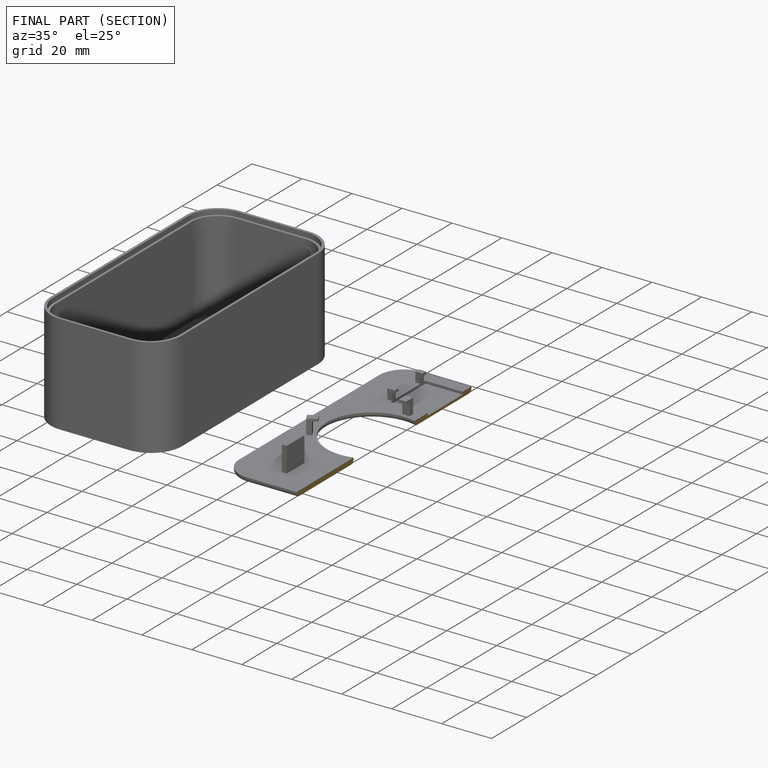
[diagram: finished part — half-section view (interior)]
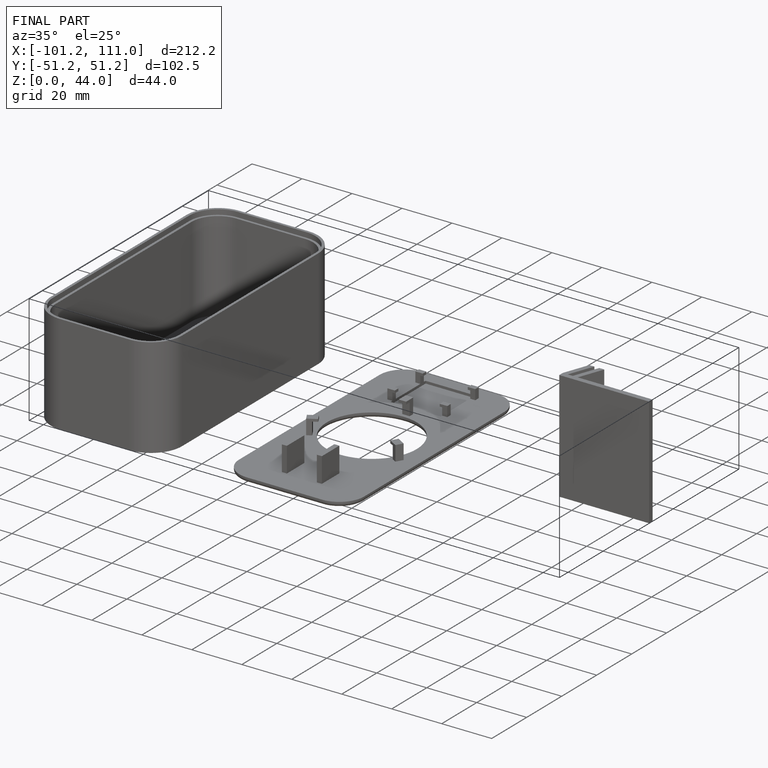
[diagram: finished part — iso view with bounding-box wireframe]
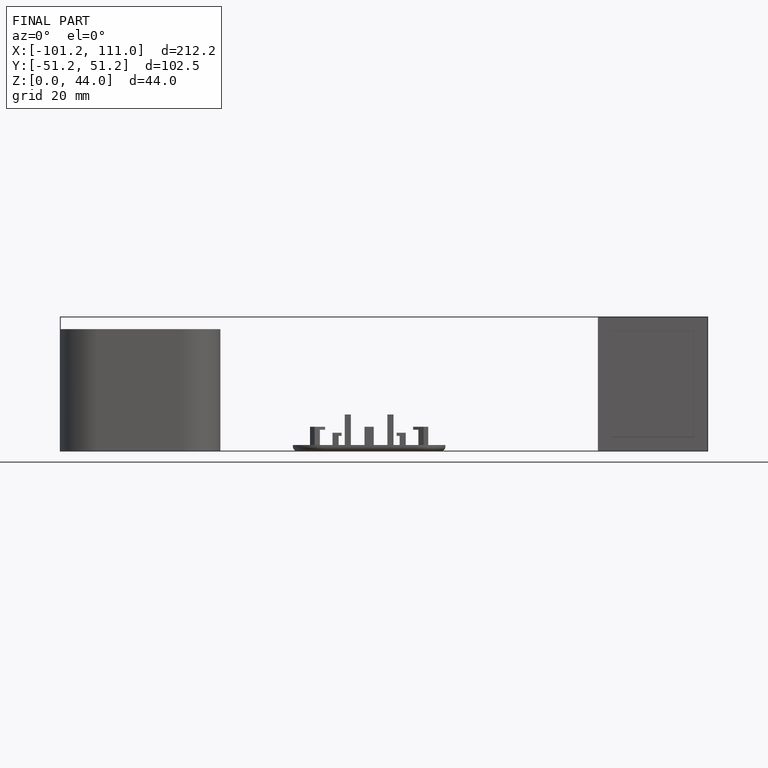
[diagram: finished part — front view with bounding-box wireframe]
